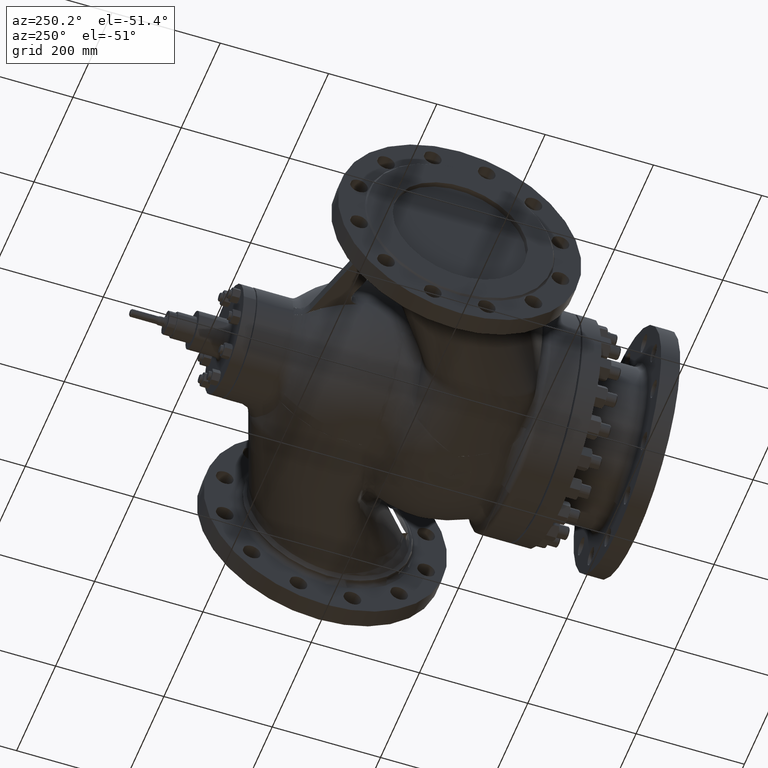
[diagram: clean part render]
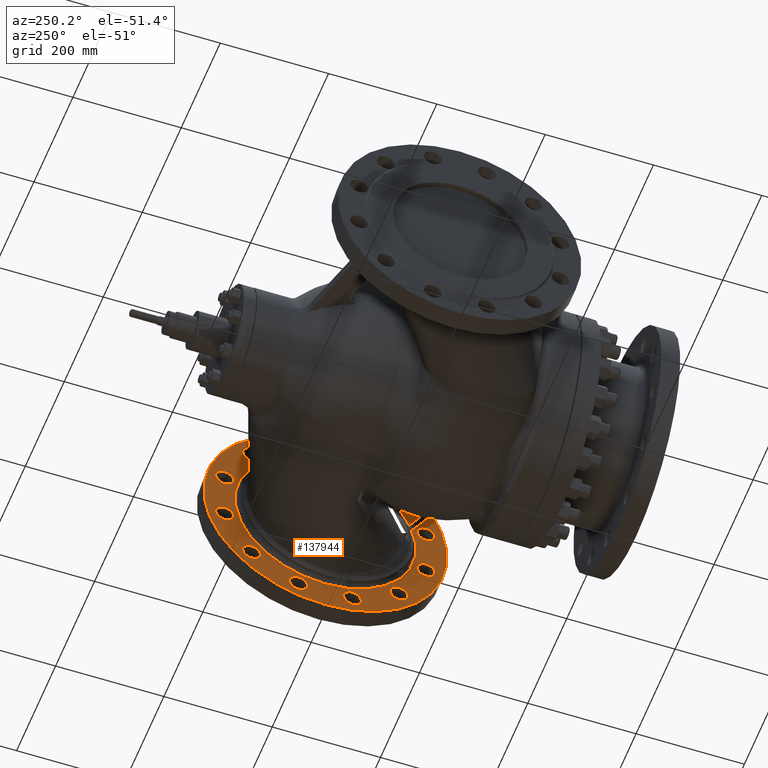
[diagram: same view with one face highlighted and labeled with its STEP entity id]
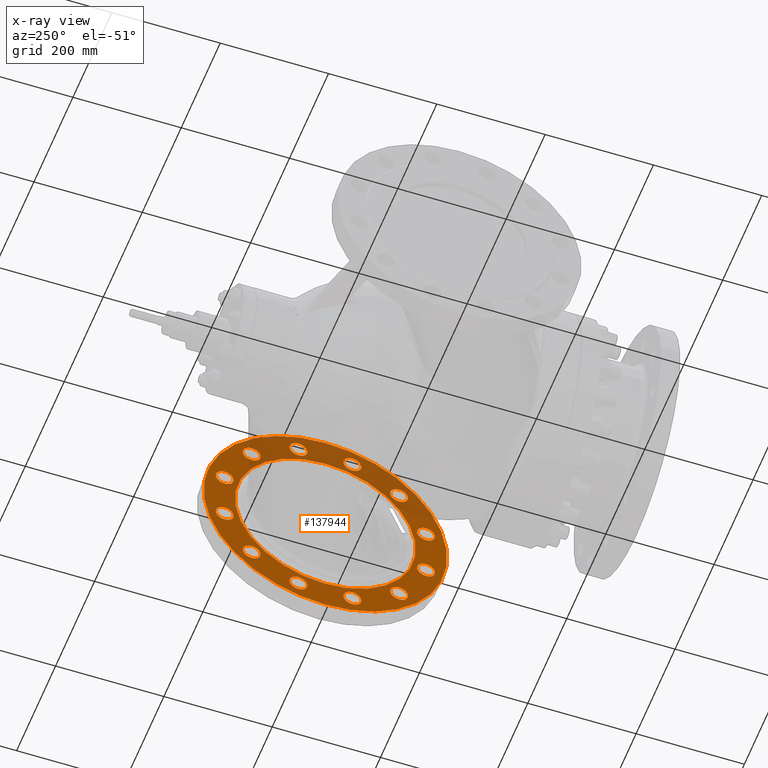
[diagram: x-ray of the same camera — body ghosted, the highlighted face saturated]
A machine part, auxiliary view. The second image highlights one B-rep face of the part: STEP entity #137944.
The next image is the same camera in x-ray: the body ghosted, the highlighted face saturated — about 30% of this face is hidden behind the body in this view.
In plain terms, the highlighted planar face has unit normal (-1, 0, -0).
Its self-contained STEP definition (entity closure, byte-faithful):
#696 = DIRECTION ( 'NONE',  ( 0.0000000000000000000, 0.0000000000000000000, -1.000000000000000000 ) ) ;
#2568 = AXIS2_PLACEMENT_3D ( 'NONE', #123202, #297009, #148208 ) ;
#4534 = DIRECTION ( 'NONE',  ( 0.0000000000000000000, -0.8660254037844393700, 0.4999999999999987200 ) ) ;
#5560 = DIRECTION ( 'NONE',  ( 1.000000000000000000, -5.551115123125782700E-017, 2.775557561562891400E-017 ) ) ;
#8884 = CIRCLE ( 'NONE', #102133, 16.50000000000000000 ) ;
#8888 = AXIS2_PLACEMENT_3D ( 'NONE', #298563, #149752, #696 ) ;
#9084 = AXIS2_PLACEMENT_3D ( 'NONE', #280653, #131852, #305626 ) ;
#10564 = DIRECTION ( 'NONE',  ( 0.0000000000000000000, 0.8660254037844326000, 0.5000000000000104400 ) ) ;
#12929 = CIRCLE ( 'NONE', #63215, 16.50000000000000000 ) ;
#14422 = CARTESIAN_POINT ( 'NONE',  ( 326.9999999999999400, -1.815214645262130600E-014, 9.076073226310653100E-015 ) ) ;
#14471 = AXIS2_PLACEMENT_3D ( 'NONE', #154616, #5560, #179657 ) ;
#14602 = FACE_BOUND ( 'NONE', #68676, .T. ) ;
#14866 = EDGE_LOOP ( 'NONE', ( #84525, #100188 ) ) ;
#15266 = CIRCLE ( 'NONE', #2568, 16.49999999999999600 ) ;
#19131 = DIRECTION ( 'NONE',  ( 1.000000000000000000, -5.551115123125782700E-017, 2.775557561562891400E-017 ) ) ;
#20977 = CIRCLE ( 'NONE', #232968, 16.50000000000000700 ) ;
#22422 = FACE_BOUND ( 'NONE', #139198, .T. ) ;
#23089 = CARTESIAN_POINT ( 'NONE',  ( 326.9999999999999400, -49.82266618223869900, 185.9407215606447600 ) ) ;
#23870 = DIRECTION ( 'NONE',  ( 1.000000000000000000, -5.551115123125782700E-017, 2.775557561562891400E-017 ) ) ;
#26438 = EDGE_CURVE ( 'NONE', #293563, #257356, #242102, .T. ) ;
#29009 = CIRCLE ( 'NONE', #186883, 16.50000000000000400 ) ;
#29210 = EDGE_CURVE ( 'NONE', #237869, #133249, #311815, .T. ) ;
#30197 = FACE_BOUND ( 'NONE', #53569, .T. ) ;
#31833 = VERTEX_POINT ( 'NONE', #169432 ) ;
#32586 = AXIS2_PLACEMENT_3D ( 'NONE', #172986, #23870, #197946 ) ;
#33059 = AXIS2_PLACEMENT_3D ( 'NONE', #243926, #95015, #268851 ) ;
#34067 = ORIENTED_EDGE ( 'NONE', *, *, #123343, .T. ) ;
#34550 = CARTESIAN_POINT ( 'NONE',  ( 326.9999999999999400, -49.82266618223334800, -202.4407215606461800 ) ) ;
#34594 = VERTEX_POINT ( 'NONE', #247815 ) ;
#36234 = ORIENTED_EDGE ( 'NONE', *, *, #159544, .T. ) ;
#36463 = CARTESIAN_POINT ( 'NONE',  ( 326.9999999999999400, -49.82266618223869900, 202.4407215606447300 ) ) ;
#39465 = DIRECTION ( 'NONE',  ( 0.0000000000000000000, -6.502944296374021100E-017, 1.000000000000000000 ) ) ;
#40303 = EDGE_CURVE ( 'NONE', #188289, #69858, #206562, .T. ) ;
#46143 = EDGE_LOOP ( 'NONE', ( #102888, #68828 ) ) ;
#47162 = CARTESIAN_POINT ( 'NONE',  ( 326.9999999999999400, -2.901206342756592600E-014, 167.0000000000000300 ) ) ;
#47433 = CARTESIAN_POINT ( 'NONE',  ( 326.9999999999999400, -185.9407215606452400, -66.32266618223670200 ) ) ;
#48162 = DIRECTION ( 'NONE',  ( 0.0000000000000000000, 0.8660254037844326000, 0.5000000000000104400 ) ) ;
#48846 = VERTEX_POINT ( 'NONE', #314291 ) ;
#51274 = EDGE_CURVE ( 'NONE', #220864, #224425, #15266, .T. ) ;
#51577 = ORIENTED_EDGE ( 'NONE', *, *, #117546, .F. ) ;
#51803 = ORIENTED_EDGE ( 'NONE', *, *, #133312, .T. ) ;
#53161 = ORIENTED_EDGE ( 'NONE', *, *, #29210, .T. ) ;
#53569 = EDGE_LOOP ( 'NONE', ( #277295, #313118 ) ) ;
#53877 = CARTESIAN_POINT ( 'NONE',  ( 326.9999999999999400, -49.82266618223334800, -185.9407215606461800 ) ) ;
#56119 = EDGE_CURVE ( 'NONE', #248981, #187266, #170810, .T. ) ;
#58520 = VERTEX_POINT ( 'NONE', #264132 ) ;
#59806 = CARTESIAN_POINT ( 'NONE',  ( 326.9999999999999400, -185.9407215606452400, -33.32266618223670900 ) ) ;
#60693 = CARTESIAN_POINT ( 'NONE',  ( 326.9999999999999400, 136.1180553784081700, 119.6180553784125900 ) ) ;
#63215 = AXIS2_PLACEMENT_3D ( 'NONE', #262137, #113264, #287103 ) ;
#64975 = CARTESIAN_POINT ( 'NONE',  ( 326.9999999999999400, -185.9407215606452400, -49.82266618223670900 ) ) ;
#65294 = CIRCLE ( 'NONE', #9084, 16.50000000000000000 ) ;
#68676 = EDGE_LOOP ( 'NONE', ( #307357, #317574 ) ) ;
#68828 = ORIENTED_EDGE ( 'NONE', *, *, #111956, .T. ) ;
#69858 = VERTEX_POINT ( 'NONE', #238137 ) ;
#73054 = CIRCLE ( 'NONE', #170868, 16.50000000000000400 ) ;
#75295 = DIRECTION ( 'NONE',  ( 1.000000000000000000, -5.551115123125782700E-017, 2.775557561562891400E-017 ) ) ;
#75796 = CARTESIAN_POINT ( 'NONE',  ( 326.9999999999999400, 49.82266618223200500, 202.4407215606465200 ) ) ;
#75996 = CARTESIAN_POINT ( 'NONE',  ( 326.9999999999999400, 136.1180553784081700, 136.1180553784126100 ) ) ;
#76051 = DIRECTION ( 'NONE',  ( 1.000000000000000000, -5.551115123125782700E-017, 2.775557561562891400E-017 ) ) ;
#77076 = DIRECTION ( 'NONE',  ( 1.000000000000000000, -5.551115123125782700E-017, 2.775557561562891400E-017 ) ) ;
#78129 = DIRECTION ( 'NONE',  ( 1.000000000000000000, -5.551115123125782700E-017, 2.775557561562891400E-017 ) ) ;
#78906 = DIRECTION ( 'NONE',  ( 0.0000000000000000000, -1.000000000000000000, -3.364312195833809000E-015 ) ) ;
#79199 = EDGE_CURVE ( 'NONE', #105804, #119818, #212248, .T. ) ;
#80286 = ORIENTED_EDGE ( 'NONE', *, *, #277217, .T. ) ;
#80817 = FACE_BOUND ( 'NONE', #162258, .T. ) ;
#83114 = AXIS2_PLACEMENT_3D ( 'NONE', #147930, #321704, #172983 ) ;
#84194 = CARTESIAN_POINT ( 'NONE',  ( 326.9999999999999400, -3.278377111946285800E-014, 225.0000000000000600 ) ) ;
#84525 = ORIENTED_EDGE ( 'NONE', *, *, #139104, .T. ) ;
#84812 = EDGE_LOOP ( 'NONE', ( #262184, #316111 ) ) ;
#85677 = CARTESIAN_POINT ( 'NONE',  ( 326.9999999999998900, -1.815214645262130300E-014, 9.076073226310651600E-015 ) ) ;
#85781 = CIRCLE ( 'NONE', #249378, 225.0000000000000600 ) ;
#86412 = CARTESIAN_POINT ( 'NONE',  ( 326.9999999999999400, -49.82266618223334800, -169.4407215606461500 ) ) ;
#87181 = CARTESIAN_POINT ( 'NONE',  ( 326.9999999999999400, -136.1180553784091700, -119.6180553784116500 ) ) ;
#88076 = EDGE_CURVE ( 'NONE', #243614, #238868, #12929, .T. ) ;
#88625 = FACE_BOUND ( 'NONE', #189735, .T. ) ;
#89955 = DIRECTION ( 'NONE',  ( 0.0000000000000000000, -0.5000000000000005600, 0.8660254037844383700 ) ) ;
#89995 = AXIS2_PLACEMENT_3D ( 'NONE', #227082, #78129, #252043 ) ;
#90297 = AXIS2_PLACEMENT_3D ( 'NONE', #14422, #188530, #39465 ) ;
#93526 = CARTESIAN_POINT ( 'NONE',  ( 326.9999999999998900, -1.815214645262130300E-014, 9.076073226310651600E-015 ) ) ;
#95015 = DIRECTION ( 'NONE',  ( 1.000000000000000000, -5.551115123125782700E-017, 2.775557561562891400E-017 ) ) ;
#96084 = CARTESIAN_POINT ( 'NONE',  ( 326.9999999999999400, 49.82266618223736300, -169.4407215606451600 ) ) ;
#97150 = DIRECTION ( 'NONE',  ( 1.461890767231333100E-017, 6.502944296374021100E-017, -1.000000000000000000 ) ) ;
#97507 = ORIENTED_EDGE ( 'NONE', *, *, #168243, .T. ) ;
#99244 = AXIS2_PLACEMENT_3D ( 'NONE', #302389, #153599, #4534 ) ;
#99362 = CARTESIAN_POINT ( 'NONE',  ( 326.9999999999999400, 185.9407215606459500, -66.32266618223400200 ) ) ;
#100188 = ORIENTED_EDGE ( 'NONE', *, *, #307356, .T. ) ;
#100220 = CIRCLE ( 'NONE', #14471, 16.50000000000000000 ) ;
#101025 = DIRECTION ( 'NONE',  ( 0.0000000000000000000, 0.8660254037844431500, -0.4999999999999922300 ) ) ;
#101458 = EDGE_CURVE ( 'NONE', #316013, #117396, #222398, .T. ) ;
#102133 = AXIS2_PLACEMENT_3D ( 'NONE', #168235, #19131, #193199 ) ;
#102888 = ORIENTED_EDGE ( 'NONE', *, *, #101458, .T. ) ;
#104004 = CARTESIAN_POINT ( 'NONE',  ( 326.9999999999999400, 136.1180553784120900, -152.6180553784087100 ) ) ;
#105804 = VERTEX_POINT ( 'NONE', #244306 ) ;
#110694 = DIRECTION ( 'NONE',  ( 0.0000000000000000000, -6.502944296374023600E-017, 1.000000000000000000 ) ) ;
#111956 = EDGE_CURVE ( 'NONE', #117396, #316013, #175714, .T. ) ;
#113264 = DIRECTION ( 'NONE',  ( 1.000000000000000000, -5.551115123125782700E-017, 2.775557561562891400E-017 ) ) ;
#116552 = EDGE_CURVE ( 'NONE', #296197, #193795, #132602, .T. ) ;
#117396 = VERTEX_POINT ( 'NONE', #60693 ) ;
#117546 = EDGE_CURVE ( 'NONE', #187266, #248981, #85781, .T. ) ;
#118535 = DIRECTION ( 'NONE',  ( 0.0000000000000000000, -6.502944296374023600E-017, 1.000000000000000000 ) ) ;
#118894 = CARTESIAN_POINT ( 'NONE',  ( 326.9999999999999400, -136.1180553784130600, 119.6180553784077600 ) ) ;
#119349 = CARTESIAN_POINT ( 'NONE',  ( 326.9999999999999400, 136.1180553784120900, -119.6180553784087100 ) ) ;
#119818 = VERTEX_POINT ( 'NONE', #96084 ) ;
#123202 = CARTESIAN_POINT ( 'NONE',  ( 326.9999999999999400, -185.9407215606452400, -49.82266618223670900 ) ) ;
#123343 = EDGE_CURVE ( 'NONE', #130824, #220670, #291613, .T. ) ;
#124612 = CARTESIAN_POINT ( 'NONE',  ( 326.9999999999999400, 136.1180553784120900, -136.1180553784087100 ) ) ;
#128504 = AXIS2_PLACEMENT_3D ( 'NONE', #64975, #238895, #89955 ) ;
#130446 = CARTESIAN_POINT ( 'NONE',  ( 326.9999999999999400, 136.1180553784081700, 136.1180553784126100 ) ) ;
#130750 = DIRECTION ( 'NONE',  ( 1.000000000000000000, -5.551115123125782700E-017, 2.775557561562891400E-017 ) ) ;
#130824 = VERTEX_POINT ( 'NONE', #118894 ) ;
#131852 = DIRECTION ( 'NONE',  ( 1.000000000000000000, -5.551115123125782700E-017, 2.775557561562891400E-017 ) ) ;
#132602 = CIRCLE ( 'NONE', #32586, 16.49999999999999300 ) ;
#133249 = VERTEX_POINT ( 'NONE', #318482 ) ;
#133312 = EDGE_CURVE ( 'NONE', #220670, #130824, #279437, .T. ) ;
#135449 = DIRECTION ( 'NONE',  ( 1.000000000000000000, -5.551115123125782700E-017, 2.775557561562891400E-017 ) ) ;
#135566 = ORIENTED_EDGE ( 'NONE', *, *, #317401, .T. ) ;
#135752 = CARTESIAN_POINT ( 'NONE',  ( 326.9999999999999400, -1.815214645262130600E-014, 9.076073226310653100E-015 ) ) ;
#137944 = ADVANCED_FACE ( 'NONE', ( #220918, #30197, #286941, #294735, #154792, #88625, #22422, #279128, #213121, #147016, #80817, #14602, #271396, #205299 ), #244990, .T. ) ;
#138030 = EDGE_CURVE ( 'NONE', #69858, #188289, #73054, .T. ) ;
#139104 = EDGE_CURVE ( 'NONE', #317630, #48846, #100220, .T. ) ;
#139198 = EDGE_LOOP ( 'NONE', ( #248462, #36234 ) ) ;
#142873 = AXIS2_PLACEMENT_3D ( 'NONE', #279570, #130750, #304532 ) ;
#146910 = CARTESIAN_POINT ( 'NONE',  ( 326.9999999999999400, 185.9407215606448700, 49.82266618223803800 ) ) ;
#147016 = FACE_BOUND ( 'NONE', #84812, .T. ) ;
#147930 = CARTESIAN_POINT ( 'NONE',  ( 326.9999999999999400, -136.1180553784130600, 136.1180553784077700 ) ) ;
#148131 = CIRCLE ( 'NONE', #202691, 16.49999999999999600 ) ;
#148208 = DIRECTION ( 'NONE',  ( 0.0000000000000000000, -0.5000000000000005600, 0.8660254037844383700 ) ) ;
#149613 = DIRECTION ( 'NONE',  ( 0.0000000000000000000, -0.4999999999999955000, -0.8660254037844413700 ) ) ;
#149752 = DIRECTION ( 'NONE',  ( 1.000000000000000000, -5.551115123125782700E-017, 2.775557561562891400E-017 ) ) ;
#150403 = EDGE_LOOP ( 'NONE', ( #158848, #53161 ) ) ;
#151571 = VERTEX_POINT ( 'NONE', #47162 ) ;
#153599 = DIRECTION ( 'NONE',  ( 1.000000000000000000, -5.551115123125782700E-017, 2.775557561562891400E-017 ) ) ;
#154616 = CARTESIAN_POINT ( 'NONE',  ( 326.9999999999999400, 49.82266618223200500, 185.9407215606465200 ) ) ;
#154688 = CIRCLE ( 'NONE', #128504, 16.49999999999999600 ) ;
#154702 = VERTEX_POINT ( 'NONE', #317021 ) ;
#154792 = FACE_BOUND ( 'NONE', #150403, .T. ) ;
#155440 = DIRECTION ( 'NONE',  ( 0.0000000000000000000, 0.8660254037844431500, -0.4999999999999922300 ) ) ;
#156049 = EDGE_CURVE ( 'NONE', #193795, #296197, #165488, .T. ) ;
#158848 = ORIENTED_EDGE ( 'NONE', *, *, #264334, .T. ) ;
#159026 = CIRCLE ( 'NONE', #186649, 167.0000000000000300 ) ;
#159544 = EDGE_CURVE ( 'NONE', #257356, #293563, #148131, .T. ) ;
#159638 = DIRECTION ( 'NONE',  ( 1.000000000000000000, -5.551115123125782700E-017, 2.775557561562891400E-017 ) ) ;
#160755 = DIRECTION ( 'NONE',  ( 0.0000000000000000000, -6.502944296374021100E-017, 1.000000000000000000 ) ) ;
#162258 = EDGE_LOOP ( 'NONE', ( #252598, #185468 ) ) ;
#165488 = CIRCLE ( 'NONE', #231685, 16.49999999999999300 ) ;
#168235 = CARTESIAN_POINT ( 'NONE',  ( 326.9999999999999400, -185.9407215606460100, 49.82266618223402300 ) ) ;
#168243 = EDGE_CURVE ( 'NONE', #119818, #105804, #303028, .T. ) ;
#169432 = CARTESIAN_POINT ( 'NONE',  ( 326.9999999999999400, -2.774383102343749100E-014, -167.0000000000000300 ) ) ;
#170768 = CIRCLE ( 'NONE', #8888, 16.50000000000000700 ) ;
#170810 = CIRCLE ( 'NONE', #90297, 225.0000000000000600 ) ;
#170868 = AXIS2_PLACEMENT_3D ( 'NONE', #23089, #197159, #48162 ) ;
#171104 = EDGE_CURVE ( 'NONE', #151571, #31833, #159026, .T. ) ;
#171298 = EDGE_CURVE ( 'NONE', #31833, #151571, #283388, .T. ) ;
#171945 = DIRECTION ( 'NONE',  ( 0.0000000000000000000, 0.5000000000000071100, -0.8660254037844346000 ) ) ;
#172983 = DIRECTION ( 'NONE',  ( 0.0000000000000000000, 0.4999999999999882900, 0.8660254037844454800 ) ) ;
#172986 = CARTESIAN_POINT ( 'NONE',  ( 326.9999999999999400, -49.82266618223334800, -185.9407215606461800 ) ) ;
#175714 = CIRCLE ( 'NONE', #317835, 16.49999999999999300 ) ;
#179551 = EDGE_CURVE ( 'NONE', #224425, #220864, #154688, .T. ) ;
#179657 = DIRECTION ( 'NONE',  ( 0.0000000000000000000, 1.000000000000000000, 1.009293658750142300E-014 ) ) ;
#185468 = ORIENTED_EDGE ( 'NONE', *, *, #179551, .T. ) ;
#185973 = EDGE_LOOP ( 'NONE', ( #251127, #266718 ) ) ;
#186649 = AXIS2_PLACEMENT_3D ( 'NONE', #85677, #259570, #110694 ) ;
#186883 = AXIS2_PLACEMENT_3D ( 'NONE', #224233, #75295, #249205 ) ;
#187266 = VERTEX_POINT ( 'NONE', #225874 ) ;
#187508 = AXIS2_PLACEMENT_3D ( 'NONE', #221058, #246057, #97150 ) ;
#188289 = VERTEX_POINT ( 'NONE', #36463 ) ;
#188530 = DIRECTION ( 'NONE',  ( 1.000000000000000000, -5.551115123125782700E-017, 2.775557561562891400E-017 ) ) ;
#189735 = EDGE_LOOP ( 'NONE', ( #135566, #80286 ) ) ;
#189915 = AXIS2_PLACEMENT_3D ( 'NONE', #308415, #159638, #10564 ) ;
#191725 = ORIENTED_EDGE ( 'NONE', *, *, #171298, .T. ) ;
#193199 = DIRECTION ( 'NONE',  ( 0.0000000000000000000, 0.0000000000000000000, 1.000000000000000000 ) ) ;
#193795 = VERTEX_POINT ( 'NONE', #34550 ) ;
#197159 = DIRECTION ( 'NONE',  ( 1.000000000000000000, -5.551115123125782700E-017, 2.775557561562891400E-017 ) ) ;
#197946 = DIRECTION ( 'NONE',  ( 0.0000000000000000000, -1.000000000000000000, -3.364312195833809000E-015 ) ) ;
#202691 = AXIS2_PLACEMENT_3D ( 'NONE', #124612, #298417, #149613 ) ;
#204423 = CIRCLE ( 'NONE', #99244, 16.50000000000000000 ) ;
#205299 = FACE_OUTER_BOUND ( 'NONE', #321451, .T. ) ;
#206562 = CIRCLE ( 'NONE', #189915, 16.50000000000000400 ) ;
#210325 = AXIS2_PLACEMENT_3D ( 'NONE', #146910, #320663, #171945 ) ;
#210438 = EDGE_CURVE ( 'NONE', #154702, #58520, #8884, .T. ) ;
#212248 = CIRCLE ( 'NONE', #277443, 16.50000000000000000 ) ;
#213121 = FACE_BOUND ( 'NONE', #185973, .T. ) ;
#220670 = VERTEX_POINT ( 'NONE', #233758 ) ;
#220864 = VERTEX_POINT ( 'NONE', #59806 ) ;
#220918 = FACE_BOUND ( 'NONE', #275076, .T. ) ;
#221058 = CARTESIAN_POINT ( 'NONE',  ( 326.9999999999999400, -225.0000000000000300, 1.433730810990085500E-014 ) ) ;
#222398 = CIRCLE ( 'NONE', #226070, 16.49999999999999300 ) ;
#224233 = CARTESIAN_POINT ( 'NONE',  ( 326.9999999999999400, 185.9407215606448700, 49.82266618223803800 ) ) ;
#224425 = VERTEX_POINT ( 'NONE', #47433 ) ;
#225002 = CARTESIAN_POINT ( 'NONE',  ( 326.9999999999999400, 185.9407215606459500, -49.82266618223400200 ) ) ;
#225874 = CARTESIAN_POINT ( 'NONE',  ( 326.9999999999999400, -3.204651991314221900E-014, -225.0000000000000000 ) ) ;
#226027 = CARTESIAN_POINT ( 'NONE',  ( 326.9999999999999400, -136.1180553784130600, 136.1180553784077700 ) ) ;
#226070 = AXIS2_PLACEMENT_3D ( 'NONE', #130446, #304231, #155440 ) ;
#227082 = CARTESIAN_POINT ( 'NONE',  ( 326.9999999999999400, 49.82266618223200500, 185.9407215606465200 ) ) ;
#227860 = VERTEX_POINT ( 'NONE', #99362 ) ;
#227868 = DIRECTION ( 'NONE',  ( 1.000000000000000000, -5.551115123125782700E-017, 2.775557561562891400E-017 ) ) ;
#228669 = EDGE_LOOP ( 'NONE', ( #97507, #288269 ) ) ;
#231685 = AXIS2_PLACEMENT_3D ( 'NONE', #53877, #227868, #78906 ) ;
#232968 = AXIS2_PLACEMENT_3D ( 'NONE', #225002, #76051, #249978 ) ;
#233177 = CIRCLE ( 'NONE', #89995, 16.50000000000000000 ) ;
#233758 = CARTESIAN_POINT ( 'NONE',  ( 326.9999999999999400, -136.1180553784130600, 152.6180553784077700 ) ) ;
#236819 = ORIENTED_EDGE ( 'NONE', *, *, #171104, .T. ) ;
#237869 = VERTEX_POINT ( 'NONE', #269656 ) ;
#238137 = CARTESIAN_POINT ( 'NONE',  ( 326.9999999999999400, -49.82266618223869900, 169.4407215606447600 ) ) ;
#238147 = ORIENTED_EDGE ( 'NONE', *, *, #56119, .F. ) ;
#238868 = VERTEX_POINT ( 'NONE', #254301 ) ;
#238895 = DIRECTION ( 'NONE',  ( 1.000000000000000000, -5.551115123125782700E-017, 2.775557561562891400E-017 ) ) ;
#242102 = CIRCLE ( 'NONE', #33059, 16.49999999999999600 ) ;
#242804 = EDGE_CURVE ( 'NONE', #58520, #154702, #65294, .T. ) ;
#243614 = VERTEX_POINT ( 'NONE', #87181 ) ;
#243926 = CARTESIAN_POINT ( 'NONE',  ( 326.9999999999999400, 136.1180553784120900, -136.1180553784087100 ) ) ;
#244306 = CARTESIAN_POINT ( 'NONE',  ( 326.9999999999999400, 49.82266618223736300, -202.4407215606451300 ) ) ;
#244990 = PLANE ( 'NONE',  #187508 ) ;
#246057 = DIRECTION ( 'NONE',  ( -1.000000000000000000, 5.551115123125782700E-017, -1.461890767231332800E-017 ) ) ;
#247485 = AXIS2_PLACEMENT_3D ( 'NONE', #226027, #77076, #250995 ) ;
#247815 = CARTESIAN_POINT ( 'NONE',  ( 326.9999999999999400, 185.9407215606459500, -33.32266618223400200 ) ) ;
#248462 = ORIENTED_EDGE ( 'NONE', *, *, #26438, .T. ) ;
#248981 = VERTEX_POINT ( 'NONE', #84194 ) ;
#249205 = DIRECTION ( 'NONE',  ( 0.0000000000000000000, 0.5000000000000071100, -0.8660254037844346000 ) ) ;
#249378 = AXIS2_PLACEMENT_3D ( 'NONE', #135752, #309529, #160755 ) ;
#249922 = DIRECTION ( 'NONE',  ( 1.000000000000000000, -5.551115123125782700E-017, 2.775557561562891400E-017 ) ) ;
#249978 = DIRECTION ( 'NONE',  ( 0.0000000000000000000, 0.0000000000000000000, -1.000000000000000000 ) ) ;
#250995 = DIRECTION ( 'NONE',  ( 0.0000000000000000000, 0.4999999999999882900, 0.8660254037844454800 ) ) ;
#251127 = ORIENTED_EDGE ( 'NONE', *, *, #116552, .T. ) ;
#252043 = DIRECTION ( 'NONE',  ( 0.0000000000000000000, 1.000000000000000000, 1.009293658750142300E-014 ) ) ;
#252598 = ORIENTED_EDGE ( 'NONE', *, *, #51274, .T. ) ;
#254301 = CARTESIAN_POINT ( 'NONE',  ( 326.9999999999999400, -136.1180553784091700, -152.6180553784116700 ) ) ;
#257356 = VERTEX_POINT ( 'NONE', #104004 ) ;
#259472 = EDGE_CURVE ( 'NONE', #238868, #243614, #204423, .T. ) ;
#259570 = DIRECTION ( 'NONE',  ( 1.000000000000000000, -5.551115123125782700E-017, 2.775557561562891400E-017 ) ) ;
#262137 = CARTESIAN_POINT ( 'NONE',  ( 326.9999999999999400, -136.1180553784091700, -136.1180553784116400 ) ) ;
#262184 = ORIENTED_EDGE ( 'NONE', *, *, #88076, .T. ) ;
#264132 = CARTESIAN_POINT ( 'NONE',  ( 326.9999999999999400, -185.9407215606460100, 66.32266618223401600 ) ) ;
#264334 = EDGE_CURVE ( 'NONE', #133249, #237869, #29009, .T. ) ;
#266718 = ORIENTED_EDGE ( 'NONE', *, *, #156049, .T. ) ;
#267380 = DIRECTION ( 'NONE',  ( 1.000000000000000000, -5.551115123125782700E-017, 2.775557561562891400E-017 ) ) ;
#268851 = DIRECTION ( 'NONE',  ( 0.0000000000000000000, -0.4999999999999955000, -0.8660254037844413700 ) ) ;
#269656 = CARTESIAN_POINT ( 'NONE',  ( 326.9999999999999400, 185.9407215606448700, 33.32266618223803800 ) ) ;
#269866 = AXIS2_PLACEMENT_3D ( 'NONE', #93526, #267380, #118535 ) ;
#271396 = FACE_BOUND ( 'NONE', #309937, .T. ) ;
#275076 = EDGE_LOOP ( 'NONE', ( #51803, #34067 ) ) ;
#277217 = EDGE_CURVE ( 'NONE', #227860, #34594, #20977, .T. ) ;
#277295 = ORIENTED_EDGE ( 'NONE', *, *, #40303, .T. ) ;
#277443 = AXIS2_PLACEMENT_3D ( 'NONE', #284250, #135449, #309217 ) ;
#279128 = FACE_BOUND ( 'NONE', #228669, .T. ) ;
#279437 = CIRCLE ( 'NONE', #83114, 16.50000000000001400 ) ;
#279570 = CARTESIAN_POINT ( 'NONE',  ( 326.9999999999999400, 49.82266618223736300, -185.9407215606451600 ) ) ;
#280653 = CARTESIAN_POINT ( 'NONE',  ( 326.9999999999999400, -185.9407215606460100, 49.82266618223402300 ) ) ;
#283388 = CIRCLE ( 'NONE', #269866, 167.0000000000000300 ) ;
#284250 = CARTESIAN_POINT ( 'NONE',  ( 326.9999999999999400, 49.82266618223736300, -185.9407215606451600 ) ) ;
#286941 = FACE_BOUND ( 'NONE', #14866, .T. ) ;
#287103 = DIRECTION ( 'NONE',  ( 0.0000000000000000000, -0.8660254037844393700, 0.4999999999999987200 ) ) ;
#288269 = ORIENTED_EDGE ( 'NONE', *, *, #79199, .T. ) ;
#291613 = CIRCLE ( 'NONE', #247485, 16.50000000000001400 ) ;
#293563 = VERTEX_POINT ( 'NONE', #119349 ) ;
#294735 = FACE_BOUND ( 'NONE', #46143, .T. ) ;
#296197 = VERTEX_POINT ( 'NONE', #86412 ) ;
#297009 = DIRECTION ( 'NONE',  ( 1.000000000000000000, -5.551115123125782700E-017, 2.775557561562891400E-017 ) ) ;
#298417 = DIRECTION ( 'NONE',  ( 1.000000000000000000, -5.551115123125782700E-017, 2.775557561562891400E-017 ) ) ;
#298563 = CARTESIAN_POINT ( 'NONE',  ( 326.9999999999999400, 185.9407215606459500, -49.82266618223400200 ) ) ;
#302389 = CARTESIAN_POINT ( 'NONE',  ( 326.9999999999999400, -136.1180553784091700, -136.1180553784116400 ) ) ;
#303028 = CIRCLE ( 'NONE', #142873, 16.50000000000000000 ) ;
#304231 = DIRECTION ( 'NONE',  ( 1.000000000000000000, -5.551115123125782700E-017, 2.775557561562891400E-017 ) ) ;
#304532 = DIRECTION ( 'NONE',  ( 0.0000000000000000000, -0.8660254037844364900, -0.5000000000000037700 ) ) ;
#305626 = DIRECTION ( 'NONE',  ( 0.0000000000000000000, 0.0000000000000000000, 1.000000000000000000 ) ) ;
#307356 = EDGE_CURVE ( 'NONE', #48846, #317630, #233177, .T. ) ;
#307357 = ORIENTED_EDGE ( 'NONE', *, *, #242804, .T. ) ;
#308415 = CARTESIAN_POINT ( 'NONE',  ( 326.9999999999999400, -49.82266618223869900, 185.9407215606447600 ) ) ;
#309217 = DIRECTION ( 'NONE',  ( 0.0000000000000000000, -0.8660254037844364900, -0.5000000000000037700 ) ) ;
#309529 = DIRECTION ( 'NONE',  ( 1.000000000000000000, -5.551115123125782700E-017, 2.775557561562891400E-017 ) ) ;
#309937 = EDGE_LOOP ( 'NONE', ( #236819, #191725 ) ) ;
#311815 = CIRCLE ( 'NONE', #210325, 16.50000000000000400 ) ;
#312831 = CARTESIAN_POINT ( 'NONE',  ( 326.9999999999999400, 136.1180553784081700, 152.6180553784126100 ) ) ;
#313118 = ORIENTED_EDGE ( 'NONE', *, *, #138030, .T. ) ;
#314291 = CARTESIAN_POINT ( 'NONE',  ( 326.9999999999999400, 49.82266618223200500, 169.4407215606465500 ) ) ;
#316013 = VERTEX_POINT ( 'NONE', #312831 ) ;
#316111 = ORIENTED_EDGE ( 'NONE', *, *, #259472, .T. ) ;
#317021 = CARTESIAN_POINT ( 'NONE',  ( 326.9999999999999400, -185.9407215606460100, 33.32266618223402300 ) ) ;
#317401 = EDGE_CURVE ( 'NONE', #34594, #227860, #170768, .T. ) ;
#317574 = ORIENTED_EDGE ( 'NONE', *, *, #210438, .T. ) ;
#317630 = VERTEX_POINT ( 'NONE', #75796 ) ;
#317835 = AXIS2_PLACEMENT_3D ( 'NONE', #75996, #249922, #101025 ) ;
#318482 = CARTESIAN_POINT ( 'NONE',  ( 326.9999999999999400, 185.9407215606448700, 66.32266618223803800 ) ) ;
#320663 = DIRECTION ( 'NONE',  ( 1.000000000000000000, -5.551115123125782700E-017, 2.775557561562891400E-017 ) ) ;
#321451 = EDGE_LOOP ( 'NONE', ( #238147, #51577 ) ) ;
#321704 = DIRECTION ( 'NONE',  ( 1.000000000000000000, -5.551115123125782700E-017, 2.775557561562891400E-017 ) ) ;